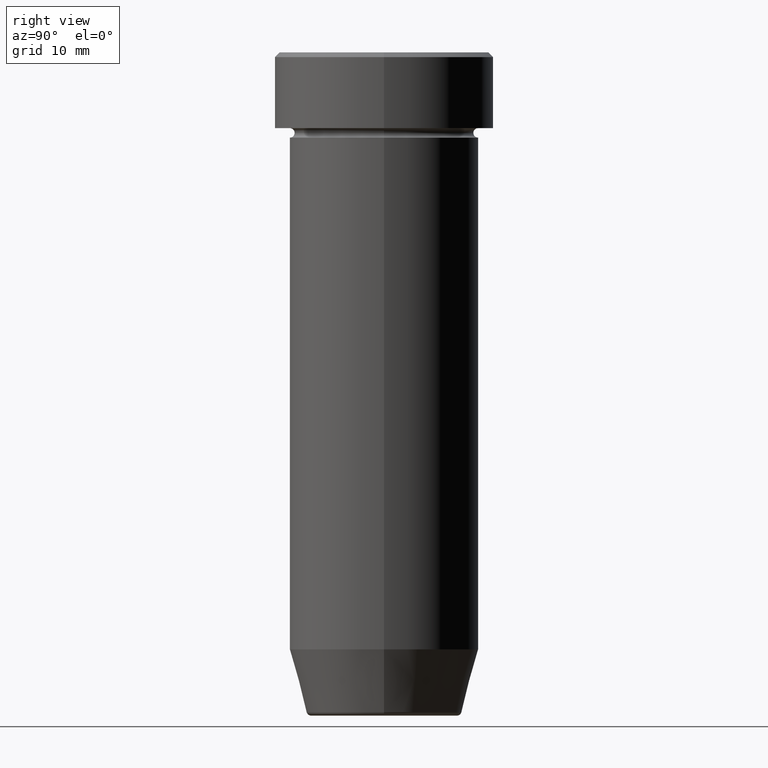
[diagram: clean part render]
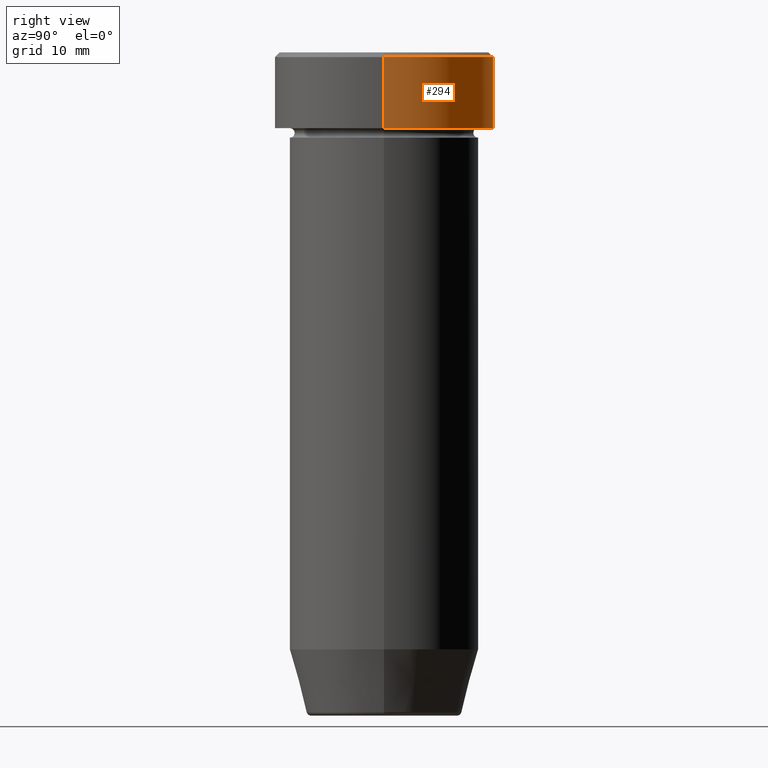
[diagram: same view with one face highlighted and labeled with its STEP entity id]
A machine part, right view. The second image highlights one B-rep face of the part: STEP entity #294.
In plain terms, the highlighted cylindrical surface (partial cylindrical patch) has radius 11.5 mm, axis along (-0, -0, 1).
Its self-contained STEP definition (entity closure, byte-faithful):
#5 = EDGE_CURVE ( 'NONE', #590, #84, #235, .T. ) ;
#13 = CARTESIAN_POINT ( 'NONE',  ( -11.50000000000000000, 1.408343819019456176E-15, -0.5000000000000073275 ) ) ;
#15 = ORIENTED_EDGE ( 'NONE', *, *, #5, .F. ) ;
#42 = DIRECTION ( 'NONE',  ( -0.000000000000000000, -0.000000000000000000, 1.000000000000000000 ) ) ;
#67 = VECTOR ( 'NONE', #417, 1000.000000000000000 ) ;
#69 = CARTESIAN_POINT ( 'NONE',  ( 0.000000000000000000, 0.000000000000000000, -0.5000000000000073275 ) ) ;
#81 = ORIENTED_EDGE ( 'NONE', *, *, #87, .T. ) ;
#84 = VERTEX_POINT ( 'NONE', #452 ) ;
#87 = EDGE_CURVE ( 'NONE', #590, #248, #321, .T. ) ;
#98 = LINE ( 'NONE', #192, #540 ) ;
#107 = CYLINDRICAL_SURFACE ( 'NONE', #360, 11.50000000000000000 ) ;
#137 = AXIS2_PLACEMENT_3D ( 'NONE', #373, #42, #549 ) ;
#140 = CARTESIAN_POINT ( 'NONE',  ( 11.50000000000000000, 0.000000000000000000, -8.000000000000000000 ) ) ;
#148 = DIRECTION ( 'NONE',  ( -0.000000000000000000, -0.000000000000000000, 1.000000000000000000 ) ) ;
#170 = DIRECTION ( 'NONE',  ( 1.000000000000000000, 0.000000000000000000, 0.000000000000000000 ) ) ;
#181 = CARTESIAN_POINT ( 'NONE',  ( 11.50000000000000000, 0.000000000000000000, 0.000000000000000000 ) ) ;
#192 = CARTESIAN_POINT ( 'NONE',  ( -11.50000000000000000, 1.408343819019456176E-15, 0.000000000000000000 ) ) ;
#196 = EDGE_CURVE ( 'NONE', #248, #572, #98, .T. ) ;
#235 = LINE ( 'NONE', #181, #67 ) ;
#243 = ORIENTED_EDGE ( 'NONE', *, *, #342, .T. ) ;
#247 = FACE_OUTER_BOUND ( 'NONE', #467, .T. ) ;
#248 = VERTEX_POINT ( 'NONE', #382 ) ;
#263 = AXIS2_PLACEMENT_3D ( 'NONE', #69, #438, #170 ) ;
#294 = ADVANCED_FACE ( 'NONE', ( #247 ), #107, .T. ) ;
#321 = CIRCLE ( 'NONE', #137, 11.50000000000000000 ) ;
#342 = EDGE_CURVE ( 'NONE', #572, #84, #454, .T. ) ;
#360 = AXIS2_PLACEMENT_3D ( 'NONE', #476, #561, #554 ) ;
#373 = CARTESIAN_POINT ( 'NONE',  ( 0.000000000000000000, 0.000000000000000000, -8.000000000000000000 ) ) ;
#382 = CARTESIAN_POINT ( 'NONE',  ( -11.50000000000000000, 1.408343819019456176E-15, -8.000000000000000000 ) ) ;
#417 = DIRECTION ( 'NONE',  ( -0.000000000000000000, -0.000000000000000000, 1.000000000000000000 ) ) ;
#438 = DIRECTION ( 'NONE',  ( 0.000000000000000000, 0.000000000000000000, -1.000000000000000000 ) ) ;
#452 = CARTESIAN_POINT ( 'NONE',  ( 11.50000000000000000, 0.000000000000000000, -0.5000000000000073275 ) ) ;
#454 = CIRCLE ( 'NONE', #263, 11.50000000000000000 ) ;
#467 = EDGE_LOOP ( 'NONE', ( #81, #516, #243, #15 ) ) ;
#476 = CARTESIAN_POINT ( 'NONE',  ( 0.000000000000000000, 0.000000000000000000, 0.000000000000000000 ) ) ;
#516 = ORIENTED_EDGE ( 'NONE', *, *, #196, .T. ) ;
#540 = VECTOR ( 'NONE', #148, 1000.000000000000000 ) ;
#549 = DIRECTION ( 'NONE',  ( 1.000000000000000000, 0.000000000000000000, 0.000000000000000000 ) ) ;
#554 = DIRECTION ( 'NONE',  ( 1.000000000000000000, 0.000000000000000000, 0.000000000000000000 ) ) ;
#561 = DIRECTION ( 'NONE',  ( -0.000000000000000000, -0.000000000000000000, 1.000000000000000000 ) ) ;
#572 = VERTEX_POINT ( 'NONE', #13 ) ;
#590 = VERTEX_POINT ( 'NONE', #140 ) ;